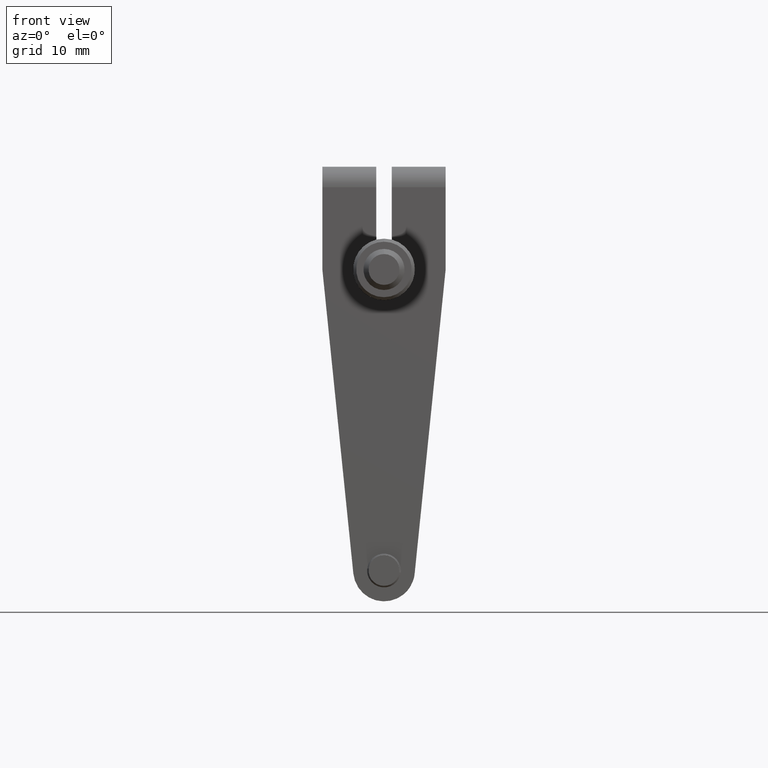
[diagram: clean part render]
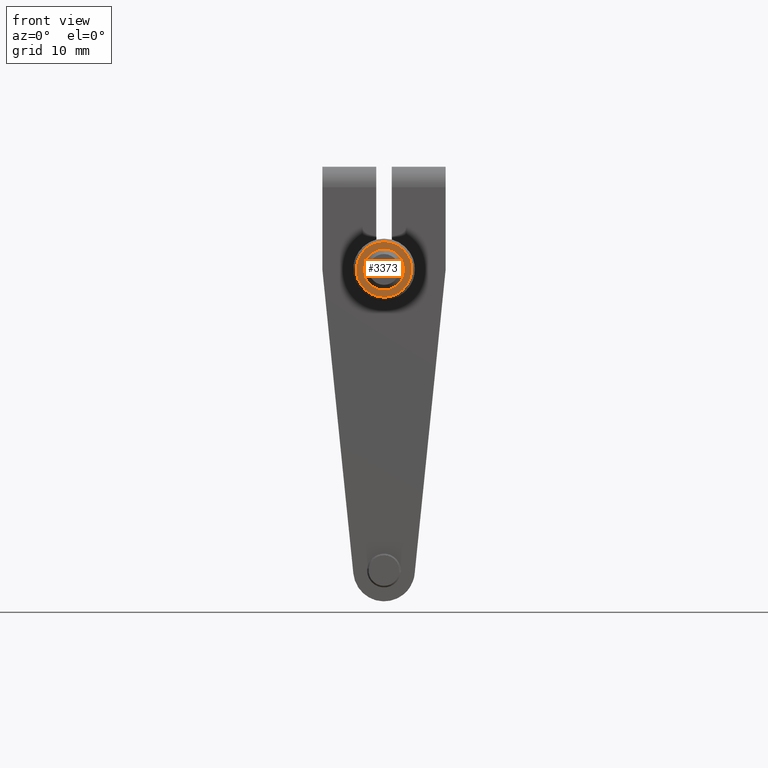
[diagram: same view with one face highlighted and labeled with its STEP entity id]
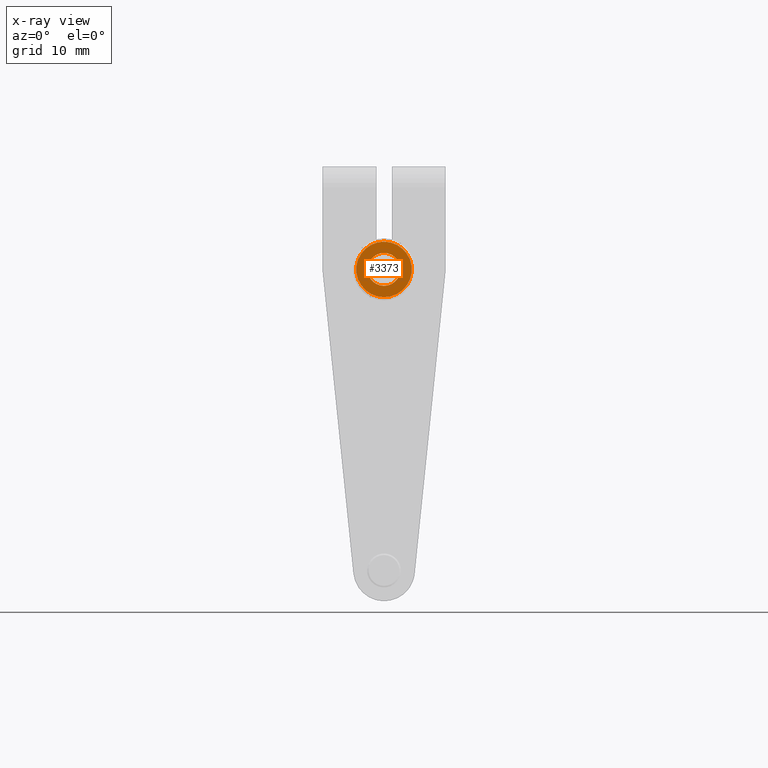
[diagram: x-ray of the same camera — body ghosted, the highlighted face saturated]
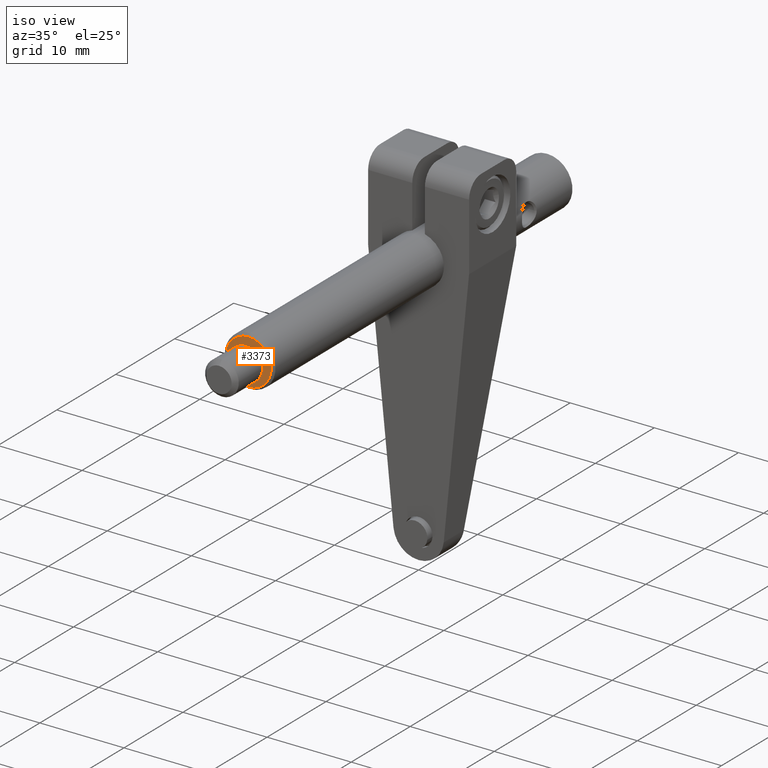
[diagram: same view with one face highlighted and labeled with its STEP entity id]
A machine part, front view. The second image highlights one B-rep face of the part: STEP entity #3373.
The next image is the same camera in x-ray: the body ghosted, the highlighted face saturated — about 0% of this face is hidden behind the body in this view.
A second angle (iso view) of the same face is appended — the face is thin or edge-on in the first view.
In plain terms, the highlighted planar face has unit normal (-0, -1, 0).
Its self-contained STEP definition (entity closure, byte-faithful):
#55 = DIRECTION ( 'NONE',  ( -7.524126418315677842E-17, -1.000000000000000000, 7.612291374223364996E-17 ) ) ;
#343 = ORIENTED_EDGE ( 'NONE', *, *, #1088, .F. ) ;
#451 = CARTESIAN_POINT ( 'NONE',  ( 2.809852386531791230E-15, -28.87046049776450829, -9.059932781950636053E-15 ) ) ;
#577 = EDGE_CURVE ( 'NONE', #2828, #3585, #2792, .T. ) ;
#911 = DIRECTION ( 'NONE',  ( -7.524126418315677842E-17, -1.000000000000000000, 7.612291374223364996E-17 ) ) ;
#1047 = AXIS2_PLACEMENT_3D ( 'NONE', #1744, #3731, #6262 ) ;
#1088 = EDGE_CURVE ( 'NONE', #6355, #3833, #4112, .T. ) ;
#1351 = ORIENTED_EDGE ( 'NONE', *, *, #5657, .T. ) ;
#1474 = ORIENTED_EDGE ( 'NONE', *, *, #577, .T. ) ;
#1524 = CARTESIAN_POINT ( 'NONE',  ( 2.809852386531791230E-15, -28.87046049776450829, -9.059932781950636053E-15 ) ) ;
#1744 = CARTESIAN_POINT ( 'NONE',  ( 2.809852386531791230E-15, -28.87046049776450829, -9.059932781950636053E-15 ) ) ;
#1936 = DIRECTION ( 'NONE',  ( 1.249000902703300861E-16, 0.0000000000000000000, 1.000000000000000000 ) ) ;
#2125 = CARTESIAN_POINT ( 'NONE',  ( 2.794938727054956079E-15, -28.87046049776450829, 1.599999999999990985 ) ) ;
#2200 = FACE_BOUND ( 'NONE', #4685, .T. ) ;
#2259 = ORIENTED_EDGE ( 'NONE', *, *, #4572, .F. ) ;
#2418 = CARTESIAN_POINT ( 'NONE',  ( 2.809852386531791230E-15, -28.87046049776450829, -9.059932781950636053E-15 ) ) ;
#2559 = DIRECTION ( 'NONE',  ( 1.249000902703301354E-16, 0.0000000000000000000, 1.000000000000000000 ) ) ;
#2792 = CIRCLE ( 'NONE', #4285, 2.700000000000001066 ) ;
#2828 = VERTEX_POINT ( 'NONE', #3676 ) ;
#2831 = FACE_OUTER_BOUND ( 'NONE', #5074, .T. ) ;
#2908 = DIRECTION ( 'NONE',  ( 1.249000902703301354E-16, 0.0000000000000000000, 1.000000000000000000 ) ) ;
#3118 = CIRCLE ( 'NONE', #5853, 2.700000000000001066 ) ;
#3227 = AXIS2_PLACEMENT_3D ( 'NONE', #2418, #911, #1936 ) ;
#3373 = ADVANCED_FACE ( 'NONE', ( #2831, #2200 ), #3758, .T. ) ;
#3585 = VERTEX_POINT ( 'NONE', #4890 ) ;
#3676 = CARTESIAN_POINT ( 'NONE',  ( 2.465173318888823915E-15, -28.87046049776450829, -2.700000000000009948 ) ) ;
#3731 = DIRECTION ( 'NONE',  ( -7.524126418315676609E-17, -1.000000000000000000, 7.612291374223434021E-17 ) ) ;
#3758 = PLANE ( 'NONE',  #1047 ) ;
#3833 = VERTEX_POINT ( 'NONE', #4842 ) ;
#4112 = CIRCLE ( 'NONE', #5586, 1.600000000000000089 ) ;
#4238 = DIRECTION ( 'NONE',  ( -7.524126418315677842E-17, -1.000000000000000000, 7.612291374223364996E-17 ) ) ;
#4285 = AXIS2_PLACEMENT_3D ( 'NONE', #451, #4387, #2908 ) ;
#4387 = DIRECTION ( 'NONE',  ( -7.524126418315677842E-17, -1.000000000000000000, 7.612291374223364996E-17 ) ) ;
#4572 = EDGE_CURVE ( 'NONE', #3833, #6355, #4659, .T. ) ;
#4659 = CIRCLE ( 'NONE', #3227, 1.600000000000000089 ) ;
#4685 = EDGE_LOOP ( 'NONE', ( #2259, #343 ) ) ;
#4842 = CARTESIAN_POINT ( 'NONE',  ( 2.591201926053474463E-15, -28.87046049776450829, -1.600000000000009193 ) ) ;
#4890 = CARTESIAN_POINT ( 'NONE',  ( 2.828079495672713451E-15, -28.87046049776450829, 2.699999999999991740 ) ) ;
#5074 = EDGE_LOOP ( 'NONE', ( #1474, #1351 ) ) ;
#5216 = DIRECTION ( 'NONE',  ( 1.249000902703300861E-16, 0.0000000000000000000, 1.000000000000000000 ) ) ;
#5586 = AXIS2_PLACEMENT_3D ( 'NONE', #6247, #4238, #5216 ) ;
#5657 = EDGE_CURVE ( 'NONE', #3585, #2828, #3118, .T. ) ;
#5853 = AXIS2_PLACEMENT_3D ( 'NONE', #1524, #55, #2559 ) ;
#6247 = CARTESIAN_POINT ( 'NONE',  ( 2.809852386531791230E-15, -28.87046049776450829, -9.059932781950636053E-15 ) ) ;
#6262 = DIRECTION ( 'NONE',  ( 1.249000902703301108E-16, 7.612291374223432788E-17, 1.000000000000000000 ) ) ;
#6355 = VERTEX_POINT ( 'NONE', #2125 ) ;